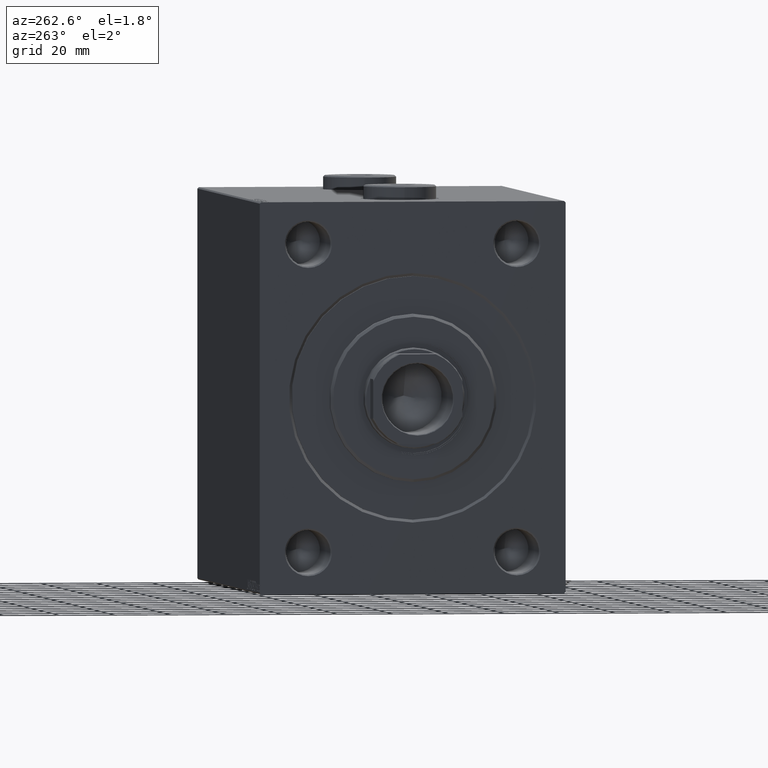
[diagram: clean part render]
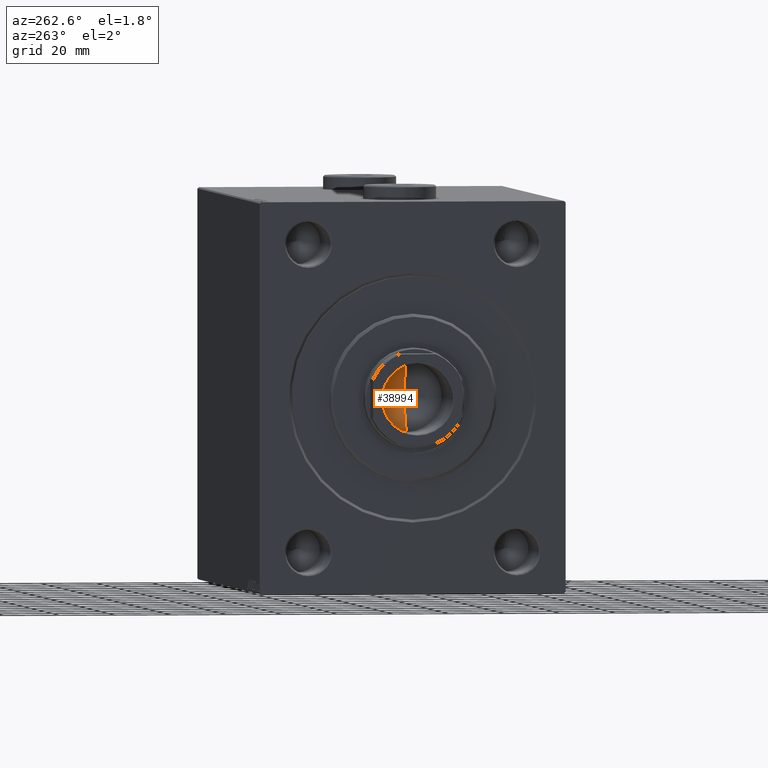
[diagram: same view with one face highlighted and labeled with its STEP entity id]
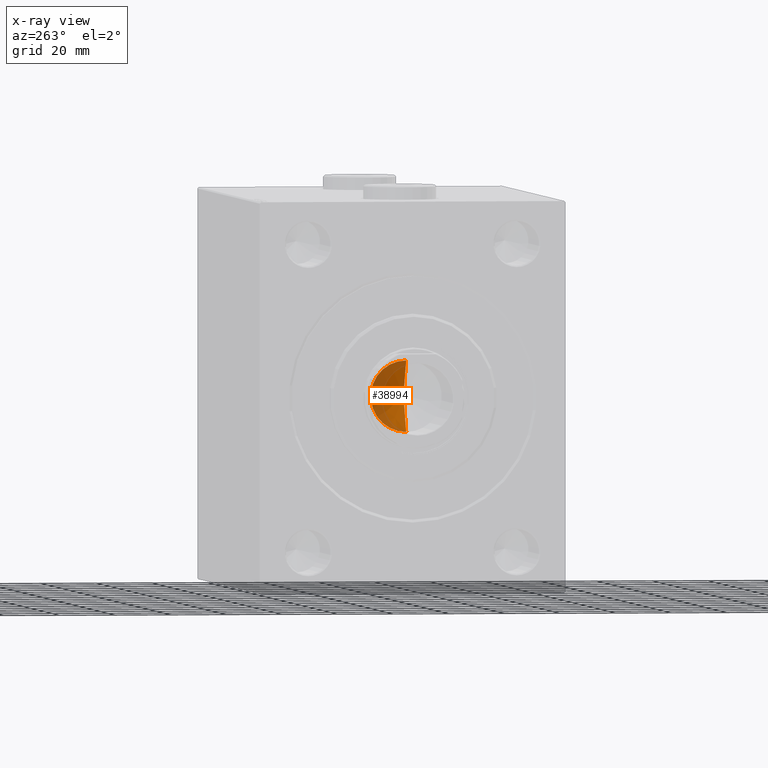
[diagram: x-ray of the same camera — body ghosted, the highlighted face saturated]
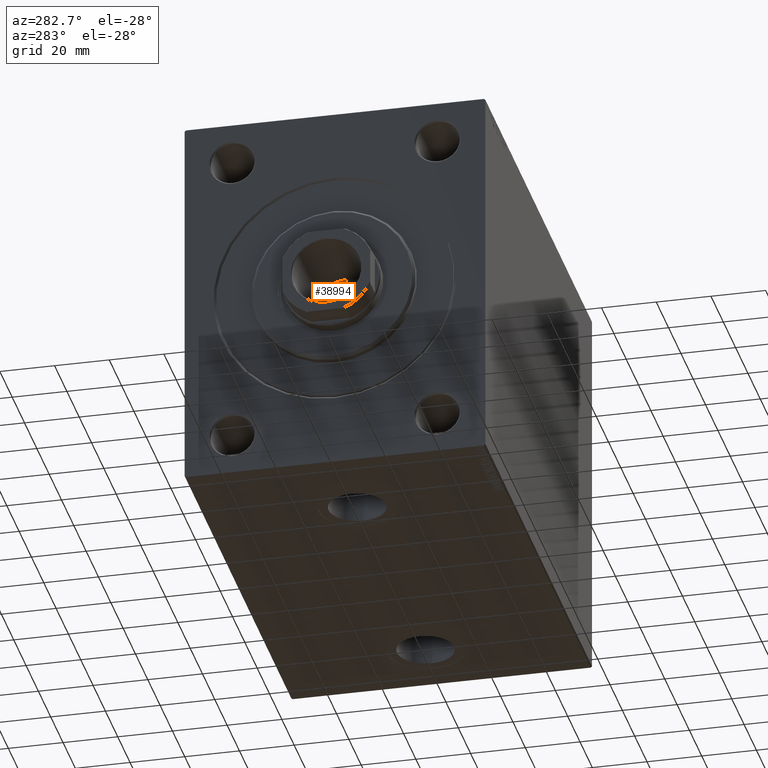
[diagram: same view with one face highlighted and labeled with its STEP entity id]
A machine part, auxiliary view. The second image highlights one B-rep face of the part: STEP entity #38994.
The next image is the same camera in x-ray: the body ghosted, the highlighted face saturated — about 41% of this face is hidden behind the body in this view.
A second angle (auxiliary view) of the same face is appended — the face is thin or edge-on in the first view.
In plain terms, the highlighted conical surface has half-angle 59 deg.
Its self-contained STEP definition (entity closure, byte-faithful):
#490 = ORIENTED_EDGE ( 'NONE', *, *, #32778, .T. ) ;
#2509 = AXIS2_PLACEMENT_3D ( 'NONE', #22945, #22260, #12548 ) ;
#5922 = CARTESIAN_POINT ( 'NONE',  ( -1.026246296720136938E-14, 0.000000000000000000, 126.3390271073986071 ) ) ;
#6172 = CARTESIAN_POINT ( 'NONE',  ( 12.74999999999999467, 0.000000000000000000, 134.0000000000000000 ) ) ;
#6823 = EDGE_CURVE ( 'NONE', #11442, #31508, #27603, .T. ) ;
#7317 = CONICAL_SURFACE ( 'NONE', #24290, 12.74999999999999467, 1.029744258676653645 ) ;
#10015 = CARTESIAN_POINT ( 'NONE',  ( 0.000000000000000000, 0.000000000000000000, 134.0000000000000000 ) ) ;
#10705 = DIRECTION ( 'NONE',  ( -0.000000000000000000, -0.000000000000000000, 1.000000000000000000 ) ) ;
#11442 = VERTEX_POINT ( 'NONE', #6172 ) ;
#12548 = DIRECTION ( 'NONE',  ( 1.000000000000000000, 0.000000000000000000, 0.000000000000000000 ) ) ;
#14508 = ORIENTED_EDGE ( 'NONE', *, *, #6823, .T. ) ;
#15849 = LINE ( 'NONE', #22788, #40625 ) ;
#19098 = CARTESIAN_POINT ( 'NONE',  ( -12.74999999999999467, 1.561424668912874519E-15, 134.0000000000000000 ) ) ;
#19843 = VECTOR ( 'NONE', #31088, 1000.000000000000000 ) ;
#21600 = ORIENTED_EDGE ( 'NONE', *, *, #28193, .F. ) ;
#22260 = DIRECTION ( 'NONE',  ( -0.000000000000000000, -0.000000000000000000, 1.000000000000000000 ) ) ;
#22788 = CARTESIAN_POINT ( 'NONE',  ( 12.74999999999999467, 0.000000000000000000, 134.0000000000000000 ) ) ;
#22945 = CARTESIAN_POINT ( 'NONE',  ( 0.000000000000000000, 0.000000000000000000, 134.0000000000000000 ) ) ;
#23879 = FACE_OUTER_BOUND ( 'NONE', #25315, .T. ) ;
#24290 = AXIS2_PLACEMENT_3D ( 'NONE', #10015, #10705, #38428 ) ;
#25315 = EDGE_LOOP ( 'NONE', ( #21600, #490, #14508 ) ) ;
#27487 = VERTEX_POINT ( 'NONE', #5922 ) ;
#27603 = CIRCLE ( 'NONE', #2509, 12.74999999999999467 ) ;
#28193 = EDGE_CURVE ( 'NONE', #27487, #31508, #37334, .T. ) ;
#31088 = DIRECTION ( 'NONE',  ( -0.8571673007021118895, 1.049727191138618079E-16, 0.5150380749100549327 ) ) ;
#31508 = VERTEX_POINT ( 'NONE', #19098 ) ;
#32778 = EDGE_CURVE ( 'NONE', #27487, #11442, #15849, .T. ) ;
#33869 = CARTESIAN_POINT ( 'NONE',  ( -12.74999999999999467, 1.561424668912874519E-15, 134.0000000000000000 ) ) ;
#36414 = DIRECTION ( 'NONE',  ( 0.8571673007021118895, 0.000000000000000000, 0.5150380749100549327 ) ) ;
#37334 = LINE ( 'NONE', #33869, #19843 ) ;
#38428 = DIRECTION ( 'NONE',  ( 1.000000000000000000, 0.000000000000000000, 0.000000000000000000 ) ) ;
#38994 = ADVANCED_FACE ( 'NONE', ( #23879 ), #7317, .F. ) ;
#40625 = VECTOR ( 'NONE', #36414, 1000.000000000000000 ) ;